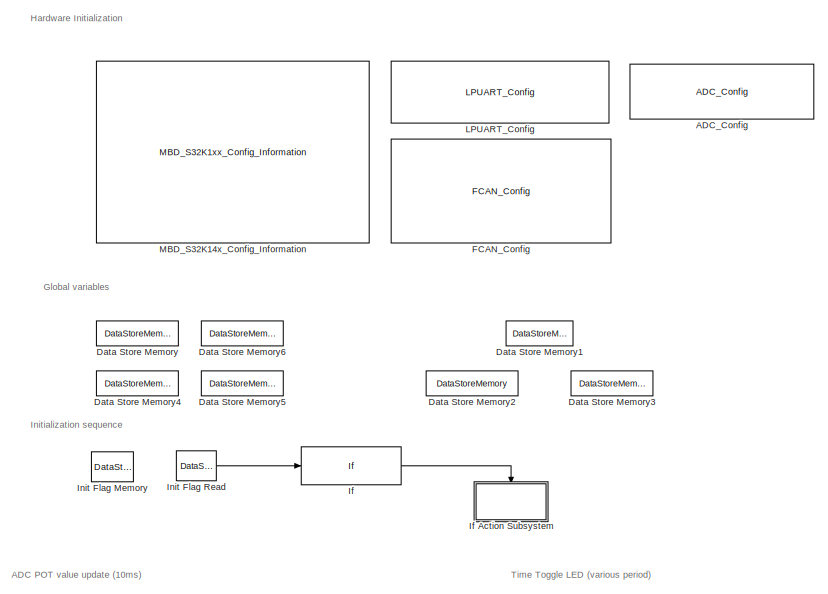
[diagram: root canvas - part 1/2, full width, top band]
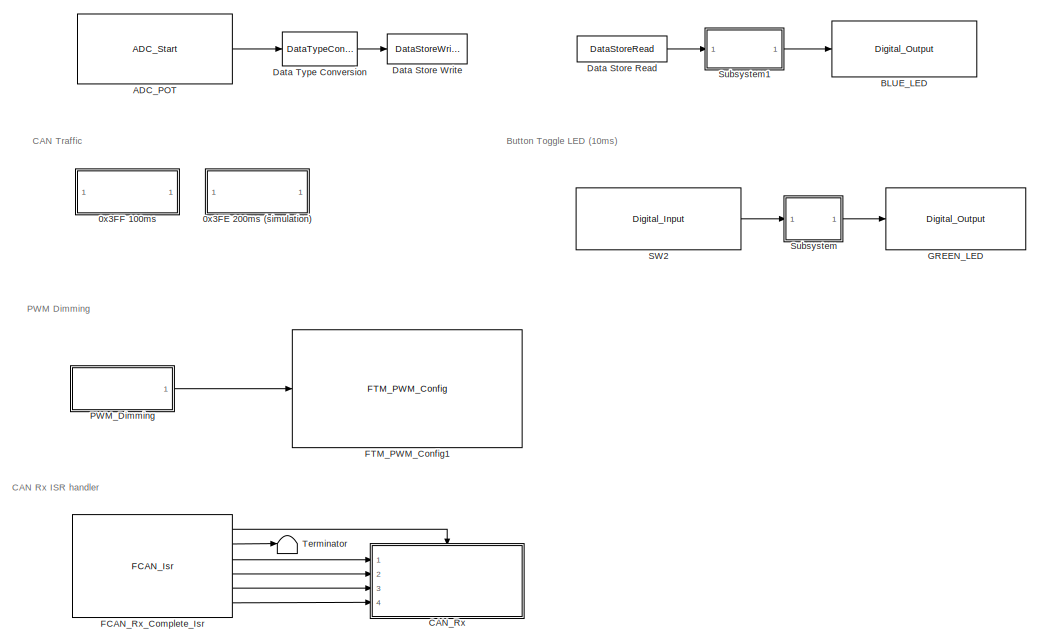
[diagram: root canvas - part 2/2, full width, bottom band]
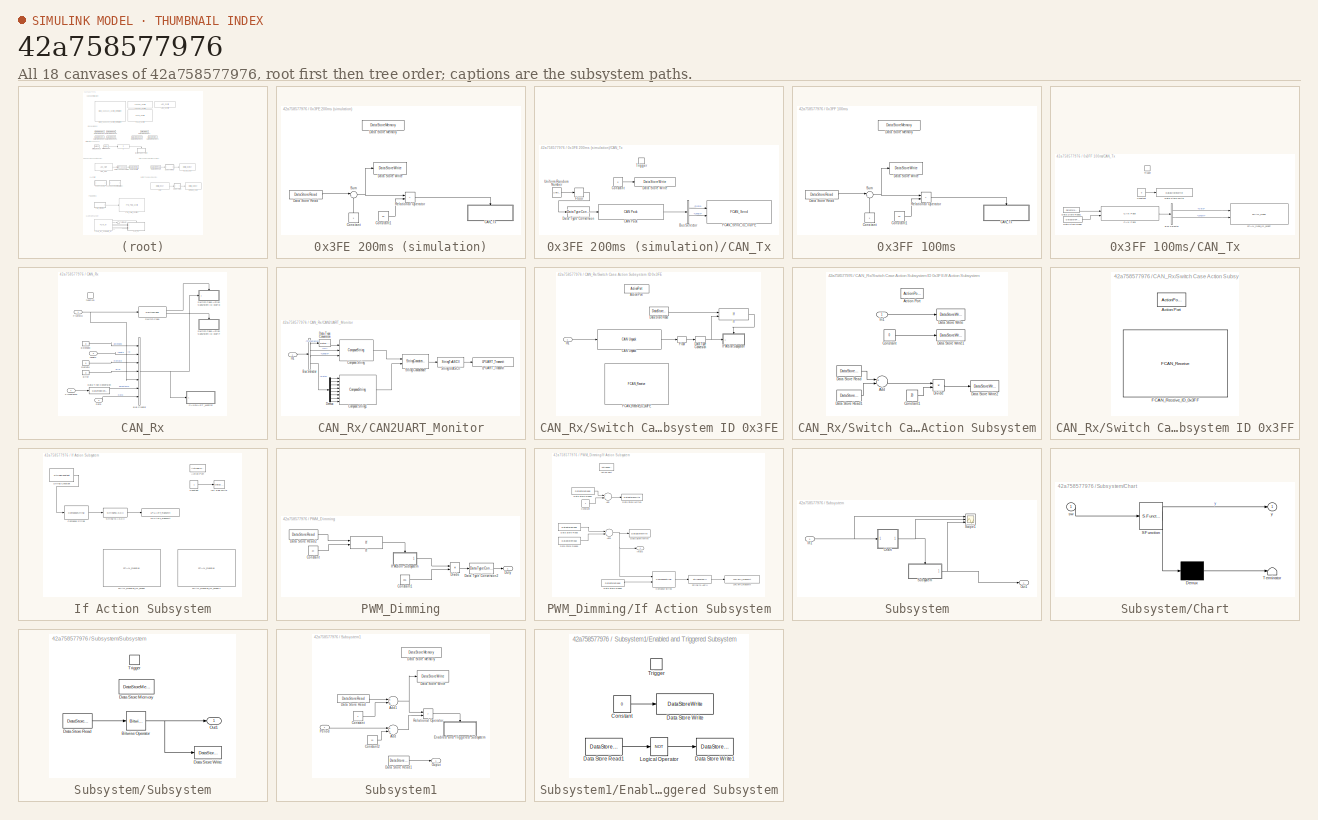
[diagram: thumbnail index - all 18 canvases of the model, root first then tree order]
MODEL slx_42a758577976
KIND model
CONFIG AbsTol = auto
CONFIG EnableMultiTasking = on
CONFIG FixedStep = 0.1
CONFIG InitFcn = mbd_s32k_consistency_checks(bdroot(gcs));
CONFIG MaxStep = auto
CONFIG MinStep = auto
CONFIG RelTol = 1e-3
CONFIG SampleTimeConstraint = Unconstrained
CONFIG Solver = FixedStepDiscrete
CONFIG SolverName = FixedStepDiscrete
CONFIG StartTime = 0.0
CONFIG StopTime = 10.0
BLOCK [SubSystem] 0x3FE 200ms (simulation)
  Ports = []
  RequestExecContextInheritance = off
BLOCK [SubSystem] 0x3FE 200ms (simulation)/CAN_Tx
  Ports = [0, 0, 0, 1]
  RTWSystemCode = Nonreusable function
  RequestExecContextInheritance = off
  TreatAsAtomicUnit = on
BLOCK [BusSelector] 0x3FE 200ms (simulation)/CAN_Tx/Bus Selector
  OutputAsBus = off
  OutputSignals = Data,Length
  Ports = [1, 2]
BLOCK [Reference] 0x3FE 200ms (simulation)/CAN_Tx/CAN Pack  REF=canmsglib/CAN Pack
  Ports = [1, 1]
  SourceBlock = canmsglib/CAN Pack
  SourceProductBaseCode = VN
  SourceProductName = Vehicle Network Toolbox
  SourceType = CAN Pack
BLOCK [Constant] 0x3FE 200ms (simulation)/CAN_Tx/Constant
  OutDataTypeStr = uint8
  Value = 0
BLOCK [DataStoreWrite] 0x3FE 200ms (simulation)/CAN_Tx/Data Store Write
  DataStoreName = counter_200ms
  Ports = [1]
BLOCK [DataTypeConversion] 0x3FE 200ms (simulation)/CAN_Tx/Data Type Conversion
  OutDataTypeStr = uint8
  RndMeth = Floor
  SaturateOnIntegerOverflow = off
BLOCK [Reference] 0x3FE 200ms (simulation)/CAN_Tx/FCAN_Send_ID_0x3FE  REF=mbd_s32k1xx_ec_toolbox/Communication Blocks/CAN Blocks/FCAN_Send
  Ports = [2]
  Priority = 2
  SourceBlock = mbd_s32k1xx_ec_toolbox/Communication Blocks/CAN Blocks/FCAN_Send
  SourceType = fcan_s32k_send
BLOCK [Rounding] 0x3FE 200ms (simulation)/CAN_Tx/Floor
  Operator = round
BLOCK [TriggerPort] 0x3FE 200ms (simulation)/CAN_Tx/Trigger
  PortDimensions = 1
  Ports = []
  StatesWhenEnabling = held
  VariantControl = Variant
BLOCK [UniformRandomNumber] 0x3FE 200ms (simulation)/CAN_Tx/Uniform Random Number
  Maximum = 255
  Minimum = 0
  Seed = 21
BLOCK [Constant] 0x3FE 200ms (simulation)/Constant
  OutDataTypeStr = uint8
BLOCK [Constant] 0x3FE 200ms (simulation)/Constant1
  Value = 20
BLOCK [DataStoreMemory] 0x3FE 200ms (simulation)/Data Store Memory
  DataStoreName = counter_200ms
  OutDataTypeStr = uint8
  ReadBeforeWriteMsg = warning
  ShowAdditionalParam = off
  WriteAfterReadMsg = warning
  WriteAfterWriteMsg = warning
BLOCK [DataStoreRead] 0x3FE 200ms (simulation)/Data Store Read
  DataStoreName = counter_200ms
  Ports = [0, 1]
BLOCK [DataStoreWrite] 0x3FE 200ms (simulation)/Data Store Write
  DataStoreName = counter_200ms
  Ports = [1]
BLOCK [RelationalOperator] 0x3FE 200ms (simulation)/Relational Operator
  InputSameDT = off
  Operator = >
  OutDataTypeStr = boolean
  Ports = [2, 1]
  RndMeth = Simplest
BLOCK [Sum] 0x3FE 200ms (simulation)/Sum
  AccumDataTypeStr = uint8
  IconShape = round
  InputSameDT = off
  Inputs = |++
  OutDataTypeStr = Inherit: Inherit via internal rule
  Ports = [2, 1]
  SaturateOnIntegerOverflow = off
BLOCK [SubSystem] 0x3FF 100ms
  Ports = []
  RequestExecContextInheritance = off
BLOCK [SubSystem] 0x3FF 100ms/CAN_Tx
  Ports = [0, 0, 0, 1]
  RTWSystemCode = Nonreusable function
  RequestExecContextInheritance = off
  TreatAsAtomicUnit = on
BLOCK [BusSelector] 0x3FF 100ms/CAN_Tx/Bus Selector
  OutputAsBus = off
  OutputSignals = Data,Length
  Ports = [1, 2]
BLOCK [Reference] 0x3FF 100ms/CAN_Tx/CAN Pack  REF=canmsglib/CAN Pack
  Ports = [2, 1]
  SourceBlock = canmsglib/CAN Pack
  SourceProductBaseCode = VN
  SourceProductName = Vehicle Network Toolbox
  SourceType = CAN Pack
BLOCK [Constant] 0x3FF 100ms/CAN_Tx/Constant
  OutDataTypeStr = uint8
  Value = 0
BLOCK [DataStoreRead] 0x3FF 100ms/CAN_Tx/Data Store Read
  DataStoreName = PotValue
  Ports = [0, 1]
BLOCK [DataStoreRead] 0x3FF 100ms/CAN_Tx/Data Store Read1
  DataStoreName = LEDSts
  Ports = [0, 1]
BLOCK [DataStoreWrite] 0x3FF 100ms/CAN_Tx/Data Store Write
  DataStoreName = counter_100ms
  Ports = [1]
BLOCK [Reference] 0x3FF 100ms/CAN_Tx/FCAN_Send_ID_0x3FF  REF=mbd_s32k1xx_ec_toolbox/Communication Blocks/CAN Blocks/FCAN_Send
  Ports = [2]
  Priority = 2
  SourceBlock = mbd_s32k1xx_ec_toolbox/Communication Blocks/CAN Blocks/FCAN_Send
  SourceType = fcan_s32k_send
BLOCK [TriggerPort] 0x3FF 100ms/CAN_Tx/Trigger
  PortDimensions = 1
  Ports = []
  StatesWhenEnabling = held
  VariantControl = Variant
BLOCK [Constant] 0x3FF 100ms/Constant
  OutDataTypeStr = uint8
BLOCK [Constant] 0x3FF 100ms/Constant1
  Value = 10
BLOCK [DataStoreMemory] 0x3FF 100ms/Data Store Memory
  DataStoreName = counter_100ms
  OutDataTypeStr = uint8
  ReadBeforeWriteMsg = warning
  ShowAdditionalParam = off
  WriteAfterReadMsg = warning
  WriteAfterWriteMsg = warning
BLOCK [DataStoreRead] 0x3FF 100ms/Data Store Read
  DataStoreName = counter_100ms
  Ports = [0, 1]
BLOCK [DataStoreWrite] 0x3FF 100ms/Data Store Write
  DataStoreName = counter_100ms
  Ports = [1]
BLOCK [RelationalOperator] 0x3FF 100ms/Relational Operator
  InputSameDT = off
  Operator = >
  OutDataTypeStr = boolean
  Ports = [2, 1]
  RndMeth = Simplest
BLOCK [Sum] 0x3FF 100ms/Sum
  AccumDataTypeStr = uint8
  IconShape = round
  InputSameDT = off
  Inputs = |++
  OutDataTypeStr = Inherit: Inherit via internal rule
  Ports = [2, 1]
  SaturateOnIntegerOverflow = off
BLOCK [Reference] ADC_Config  REF=mbd_s32k1xx_ec_toolbox/Motor Control Blocks/ADC Blocks/ADC_Config
  Ports = []
  Priority = 1
  SourceBlock = mbd_s32k1xx_ec_toolbox/Motor Control Blocks/ADC Blocks/ADC_Config
  SourceType = adc_s32k_config_block
BLOCK [Reference] ADC_POT  REF=mbd_s32k1xx_ec_toolbox/Motor Control Blocks/ADC Blocks/ADC_Start
  Ports = [0, 1]
  Priority = 2
  SourceBlock = mbd_s32k1xx_ec_toolbox/Motor Control Blocks/ADC Blocks/ADC_Start
  SourceType = adc_s32k_start_block
BLOCK [Reference] BLUE_LED  REF=mbd_s32k1xx_ec_toolbox/GPIO Blocks/Digital_Output
  Ports = [1]
  SourceBlock = mbd_s32k1xx_ec_toolbox/GPIO Blocks/Digital_Output
  SourceType = gpio_s32k_output
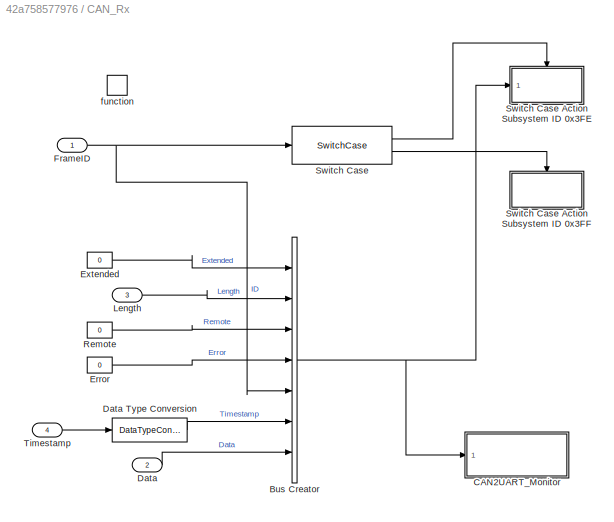
BLOCK [SubSystem] CAN_Rx
  Ports = [4, 0, 0, 1]
  RTWSystemCode = Nonreusable function
  RequestExecContextInheritance = off
  TreatAsAtomicUnit = on
BLOCK [BusCreator] CAN_Rx/Bus Creator
  DisplayOption = bar
  InheritFromInputs = on
  Inputs = 7
  NonVirtualBus = on
  OutDataTypeStr = Bus: CAN_MESSAGE_BUS
  Ports = [7, 1]
BLOCK [SubSystem] CAN_Rx/CAN2UART_Monitor
  Ports = [1]
  RequestExecContextInheritance = off
BLOCK [BusSelector] CAN_Rx/CAN2UART_Monitor/Bus Selector
  OutputAsBus = off
  OutputSignals = Timestamp,ID,Length,Data
  Ports = [1, 4]
BLOCK [ComposeString] CAN_Rx/CAN2UART_Monitor/Compose String
  Format = "%u\t0x%X\t%u\t"
  Ports = [3, 1]
BLOCK [ComposeString] CAN_Rx/CAN2UART_Monitor/Compose String1
  Format = "%.2X %.2X %.2X %.2X %.2X %.2X %.2X %.2X \r\n"
  Ports = [8, 1]
BLOCK [DataTypeConversion] CAN_Rx/CAN2UART_Monitor/Data Type Conversion
  OutDataTypeStr = uint16
  RndMeth = Floor
  SaturateOnIntegerOverflow = off
BLOCK [Demux] CAN_Rx/CAN2UART_Monitor/Demux
  DisplayOption = bar
  Outputs = 8
  Ports = [1, 8]
BLOCK [Inport] CAN_Rx/CAN2UART_Monitor/In1
  IconDisplay = Port number
  OutDataTypeStr = Bus: CAN_MESSAGE_BUS
BLOCK [Reference] CAN_Rx/CAN2UART_Monitor/LPUART_Transmit  REF=mbd_s32k1xx_ec_toolbox/Communication Blocks/UART Blocks/LPUART_Transmit
  Ports = [1]
  Priority = 2
  SourceBlock = mbd_s32k1xx_ec_toolbox/Communication Blocks/UART Blocks/LPUART_Transmit
  SourceType = lpuart_s32k_transmit
BLOCK [StringConcatenate] CAN_Rx/CAN2UART_Monitor/String Concatenate
  Ports = [2, 1]
BLOCK [StringToASCII] CAN_Rx/CAN2UART_Monitor/String to ASCII
  OutputVectorSize = 100
BLOCK [Inport] CAN_Rx/Data 
  IconDisplay = Port number
  Port = 2
BLOCK [DataTypeConversion] CAN_Rx/Data Type Conversion
  OutDataTypeStr = double
  RndMeth = Floor
  SaturateOnIntegerOverflow = off
BLOCK [Constant] CAN_Rx/Error
  OutDataTypeStr = uint8
  Value = 0
BLOCK [Constant] CAN_Rx/Extended
  OutDataTypeStr = uint8
  Value = 0
BLOCK [Inport] CAN_Rx/FrameID
  IconDisplay = Port number
BLOCK [Inport] CAN_Rx/Length
  IconDisplay = Port number
  Port = 3
BLOCK [Constant] CAN_Rx/Remote
  OutDataTypeStr = uint8
  Value = 0
BLOCK [SwitchCase] CAN_Rx/Switch Case
  CaseConditions = {hex2dec('3FE'), hex2dec('3FF')}
  Ports = [1, 2]
  ShowDefaultCase = off
BLOCK [SubSystem] CAN_Rx/Switch Case Action Subsystem ID 0x3FE
  Ports = [1, 0, 0, 0, 0, 0, 0, 1]
  RequestExecContextInheritance = off
  TreatAsAtomicUnit = on
BLOCK [ActionPort] CAN_Rx/Switch Case Action Subsystem ID 0x3FE/Action Port
  ActionPortLabel = case [ 1022 ]:
BLOCK [Reference] CAN_Rx/Switch Case Action Subsystem ID 0x3FE/CAN Unpack  REF=canmsglib/CAN Unpack
  Ports = [1, 1]
  SourceBlock = canmsglib/CAN Unpack
  SourceProductBaseCode = VN
  SourceProductName = Vehicle Network Toolbox
  SourceType = CAN Unpack
BLOCK [DataStoreRead] CAN_Rx/Switch Case Action Subsystem ID 0x3FE/Data Store Read
  DataStoreName = IntReq
  Ports = [0, 1]
BLOCK [DataTypeConversion] CAN_Rx/Switch Case Action Subsystem ID 0x3FE/Data Type Conversion
  OutDataTypeStr = uint8
  RndMeth = Floor
  SaturateOnIntegerOverflow = off
BLOCK [Reference] CAN_Rx/Switch Case Action Subsystem ID 0x3FE/FCAN_Receive_ID_0x3FE  REF=mbd_s32k1xx_ec_toolbox/Communication Blocks/CAN Blocks/FCAN_Receive
  Ports = []
  SourceBlock = mbd_s32k1xx_ec_toolbox/Communication Blocks/CAN Blocks/FCAN_Receive
  SourceType = fcan_s32k_receive
BLOCK [Rounding] CAN_Rx/Switch Case Action Subsystem ID 0x3FE/Floor
  Operator = round
BLOCK [If] CAN_Rx/Switch Case Action Subsystem ID 0x3FE/If
  IfExpression = u1 ~= u2
  NumInputs = 2
  Ports = [2, 1]
  ShowElse = off
BLOCK [SubSystem] CAN_Rx/Switch Case Action Subsystem ID 0x3FE/If Action Subsystem
  Ports = [1, 0, 0, 0, 0, 0, 0, 1]
  RequestExecContextInheritance = off
  TreatAsAtomicUnit = on
BLOCK [ActionPort] CAN_Rx/Switch Case Action Subsystem ID 0x3FE/If Action Subsystem/Action Port
  ActionPortLabel = if(u1 ~= u2)
BLOCK [Sum] CAN_Rx/Switch Case Action Subsystem ID 0x3FE/If Action Subsystem/Add
  InputSameDT = off
  Inputs = +-
  OutDataTypeStr = Inherit: Inherit via internal rule
  Ports = [2, 1]
  SaturateOnIntegerOverflow = off
BLOCK [Constant] CAN_Rx/Switch Case Action Subsystem ID 0x3FE/If Action Subsystem/Constant
  OutDataTypeStr = uint8
  Value = 0
BLOCK [Constant] CAN_Rx/Switch Case Action Subsystem ID 0x3FE/If Action Subsystem/Constant1
  Value = 20
BLOCK [DataStoreRead] CAN_Rx/Switch Case Action Subsystem ID 0x3FE/If Action Subsystem/Data Store Read
  DataStoreName = IntReq
  Ports = [0, 1]
BLOCK [DataStoreRead] CAN_Rx/Switch Case Action Subsystem ID 0x3FE/If Action Subsystem/Data Store Read1
  DataStoreName = IntSts
  Ports = [0, 1]
BLOCK [DataStoreWrite] CAN_Rx/Switch Case Action Subsystem ID 0x3FE/If Action Subsystem/Data Store Write
  DataStoreName = IntReq
  Ports = [1]
BLOCK [DataStoreWrite] CAN_Rx/Switch Case Action Subsystem ID 0x3FE/If Action Subsystem/Data Store Write1
  DataStoreName = IntStepCounter
  Ports = [1]
BLOCK [DataStoreWrite] CAN_Rx/Switch Case Action Subsystem ID 0x3FE/If Action Subsystem/Data Store Write2
  DataStoreName = IntStep
  Ports = [1]
BLOCK [Product] CAN_Rx/Switch Case Action Subsystem ID 0x3FE/If Action Subsystem/Divide
  InputSameDT = off
  Inputs = */
  OutDataTypeStr = Inherit: Inherit via internal rule
  Ports = [2, 1]
  RndMeth = Floor
  SaturateOnIntegerOverflow = off
BLOCK [Inport] CAN_Rx/Switch Case Action Subsystem ID 0x3FE/If Action Subsystem/In1
  IconDisplay = Port number
BLOCK [Inport] CAN_Rx/Switch Case Action Subsystem ID 0x3FE/In1
  IconDisplay = Port number
  OutDataTypeStr = Bus: CAN_MESSAGE_BUS
BLOCK [SubSystem] CAN_Rx/Switch Case Action Subsystem ID 0x3FF
  Ports = [0, 0, 0, 0, 0, 0, 0, 1]
  RequestExecContextInheritance = off
  TreatAsAtomicUnit = on
BLOCK [ActionPort] CAN_Rx/Switch Case Action Subsystem ID 0x3FF/Action Port
  ActionPortLabel = case [ 1023 ]:
BLOCK [Reference] CAN_Rx/Switch Case Action Subsystem ID 0x3FF/FCAN_Receive_ID_0x3FF  REF=mbd_s32k1xx_ec_toolbox/Communication Blocks/CAN Blocks/FCAN_Receive
  Ports = []
  SourceBlock = mbd_s32k1xx_ec_toolbox/Communication Blocks/CAN Blocks/FCAN_Receive
  SourceType = fcan_s32k_receive
BLOCK [Inport] CAN_Rx/Timestamp
  IconDisplay = Port number
  Port = 4
BLOCK [TriggerPort] CAN_Rx/function
  Ports = []
  StatesWhenEnabling = held
  TriggerType = function-call
  VariantControl = Variant
BLOCK [DataStoreMemory] Data Store Memory
  DataStoreName = IntReq
  OutDataTypeStr = uint8
  ReadBeforeWriteMsg = warning
  ShowAdditionalParam = off
  WriteAfterReadMsg = warning
  WriteAfterWriteMsg = warning
BLOCK [DataStoreMemory] Data Store Memory1
  DataStoreName = LEDReq
  OutDataTypeStr = boolean
  ReadBeforeWriteMsg = warning
  ShowAdditionalParam = off
  WriteAfterReadMsg = warning
  WriteAfterWriteMsg = warning
BLOCK [DataStoreMemory] Data Store Memory2
  DataStoreName = PotValue
  InitialValue = 0.1
  OutDataTypeStr = uint8
  OutMax = [2.65]
  OutMin = [0.1]
  ReadBeforeWriteMsg = warning
  ShowAdditionalParam = off
  WriteAfterReadMsg = warning
  WriteAfterWriteMsg = warning
BLOCK [DataStoreMemory] Data Store Memory3
  DataStoreName = LEDSts
  OutDataTypeStr = boolean
  ReadBeforeWriteMsg = warning
  ShowAdditionalParam = off
  WriteAfterReadMsg = warning
  WriteAfterWriteMsg = warning
BLOCK [DataStoreMemory] Data Store Memory4
  DataStoreName = IntStep
  OutDataTypeStr = double
  ReadBeforeWriteMsg = warning
  ShowAdditionalParam = off
  WriteAfterReadMsg = warning
  WriteAfterWriteMsg = warning
BLOCK [DataStoreMemory] Data Store Memory5
  DataStoreName = IntStepCounter
  OutDataTypeStr = uint8
  ReadBeforeWriteMsg = warning
  ShowAdditionalParam = off
  WriteAfterReadMsg = warning
  WriteAfterWriteMsg = warning
BLOCK [DataStoreMemory] Data Store Memory6
  DataStoreName = IntSts
  OutDataTypeStr = double
  ReadBeforeWriteMsg = warning
  ShowAdditionalParam = off
  WriteAfterReadMsg = warning
  WriteAfterWriteMsg = warning
BLOCK [DataStoreRead] Data Store Read
  DataStoreName = PotValue
  Ports = [0, 1]
BLOCK [DataStoreWrite] Data Store Write
  DataStoreName = PotValue
  Ports = [1]
BLOCK [DataTypeConversion] Data Type Conversion
  OutDataTypeStr = uint8
  RndMeth = Floor
  SaturateOnIntegerOverflow = off
BLOCK [Reference] FCAN_Config  REF=mbd_s32k1xx_ec_toolbox/Communication Blocks/CAN Blocks/FCAN_Config
  Ports = []
  Priority = 1
  SourceBlock = mbd_s32k1xx_ec_toolbox/Communication Blocks/CAN Blocks/FCAN_Config
  SourceType = fcan_s32k_config
BLOCK [Reference] FCAN_Rx_Complete_Isr  REF=mbd_s32k1xx_ec_toolbox/Communication Blocks/CAN Blocks/FCAN_Isr
  Ports = [0, 6]
  SourceBlock = mbd_s32k1xx_ec_toolbox/Communication Blocks/CAN Blocks/FCAN_Isr
  SourceType = fcan_s32k_isr
BLOCK [Reference] FTM_PWM_Config1  REF=mbd_s32k1xx_ec_toolbox/Motor Control Blocks/FTM Blocks/FTM_PWM_Config
  Ports = [1]
  Priority = 1
  SourceBlock = mbd_s32k1xx_ec_toolbox/Motor Control Blocks/FTM Blocks/FTM_PWM_Config
  SourceType = FTM_s32k_pwm_config_block
BLOCK [Reference] GREEN_LED  REF=mbd_s32k1xx_ec_toolbox/GPIO Blocks/Digital_Output
  Ports = [1]
  SourceBlock = mbd_s32k1xx_ec_toolbox/GPIO Blocks/Digital_Output
  SourceType = gpio_s32k_output
BLOCK [If] If
  IfExpression = u1 == 0
  Ports = [1, 1]
  ShowElse = off
BLOCK [SubSystem] If Action Subsystem
  Ports = [0, 0, 0, 0, 0, 0, 0, 1]
  RequestExecContextInheritance = off
  TreatAsAtomicUnit = on
BLOCK [ActionPort] If Action Subsystem/Action Port
  ActionPortLabel = if(u1 == 0)
BLOCK [ComposeString] If Action Subsystem/Compose String
  Format = "%s\n\r"
  Ports = [1, 1]
BLOCK [Constant] If Action Subsystem/Constant
  OutDataTypeStr = uint32
BLOCK [Reference] If Action Subsystem/FCAN_Receive_ID_0x3FE  REF=mbd_s32k1xx_ec_toolbox/Communication Blocks/CAN Blocks/FCAN_Receive
  Ports = []
  SourceBlock = mbd_s32k1xx_ec_toolbox/Communication Blocks/CAN Blocks/FCAN_Receive
  SourceType = fcan_s32k_receive
BLOCK [Reference] If Action Subsystem/FCAN_Receive_ID_0x3FE1  REF=mbd_s32k1xx_ec_toolbox/Communication Blocks/CAN Blocks/FCAN_Receive
  Ports = []
  SourceBlock = mbd_s32k1xx_ec_toolbox/Communication Blocks/CAN Blocks/FCAN_Receive
  SourceType = fcan_s32k_receive
BLOCK [DataStoreWrite] If Action Subsystem/Init Flag Write
  DataStoreName = init_flag
  Ports = [1]
BLOCK [Reference] If Action Subsystem/LPUART_Transmit  REF=mbd_s32k1xx_ec_toolbox/Communication Blocks/UART Blocks/LPUART_Transmit
  Ports = [1]
  Priority = 2
  SourceBlock = mbd_s32k1xx_ec_toolbox/Communication Blocks/UART Blocks/LPUART_Transmit
  SourceType = lpuart_s32k_transmit
BLOCK [StringConstant] If Action Subsystem/String Constant
  String = "Start"
BLOCK [StringToASCII] If Action Subsystem/String to ASCII
  OutputVectorSize = 100
BLOCK [DataStoreMemory] Init Flag Memory
  DataStoreName = init_flag
  OutDataTypeStr = uint32
  ReadBeforeWriteMsg = warning
  ShowAdditionalParam = off
  WriteAfterReadMsg = warning
  WriteAfterWriteMsg = warning
BLOCK [DataStoreRead] Init Flag Read
  DataStoreName = init_flag
  Ports = [0, 1]
BLOCK [Reference] LPUART_Config  REF=mbd_s32k1xx_ec_toolbox/Communication Blocks/UART Blocks/LPUART_Config
  Ports = []
  Priority = 1
  SourceBlock = mbd_s32k1xx_ec_toolbox/Communication Blocks/UART Blocks/LPUART_Config
  SourceType = lpuart_s32k_config
BLOCK [Reference] MBD_S32K14x_Config_Information  REF=mbd_s32k1xx_ec_toolbox/MBD_S32K1xx_Config_Information
  Ports = []
  SourceBlock = mbd_s32k1xx_ec_toolbox/MBD_S32K1xx_Config_Information
  SourceType = MBDTBX_EC_S32K
BLOCK [SubSystem] PWM_Dimming
  Ports = [0, 1]
  RequestExecContextInheritance = off
BLOCK [Constant] PWM_Dimming/Constant
  OutDataTypeStr = uint8
  Value = 20
BLOCK [Constant] PWM_Dimming/Constant1
  Value = 255
BLOCK [DataStoreRead] PWM_Dimming/Data Store Read2
  DataStoreName = IntStepCounter
  Ports = [0, 1]
BLOCK [DataTypeConversion] PWM_Dimming/Data Type Conversion2
  OutDataTypeStr = single
  RndMeth = Floor
  SaturateOnIntegerOverflow = off
BLOCK [Product] PWM_Dimming/Divide
  InputSameDT = off
  Inputs = */
  OutDataTypeStr = Inherit: Inherit via internal rule
  Ports = [2, 1]
  RndMeth = Floor
  SaturateOnIntegerOverflow = off
BLOCK [Outport] PWM_Dimming/Duty
  IconDisplay = Port number
BLOCK [If] PWM_Dimming/If
  IfExpression = u1 < u2
  NumInputs = 2
  Ports = [2, 1]
  ShowElse = off
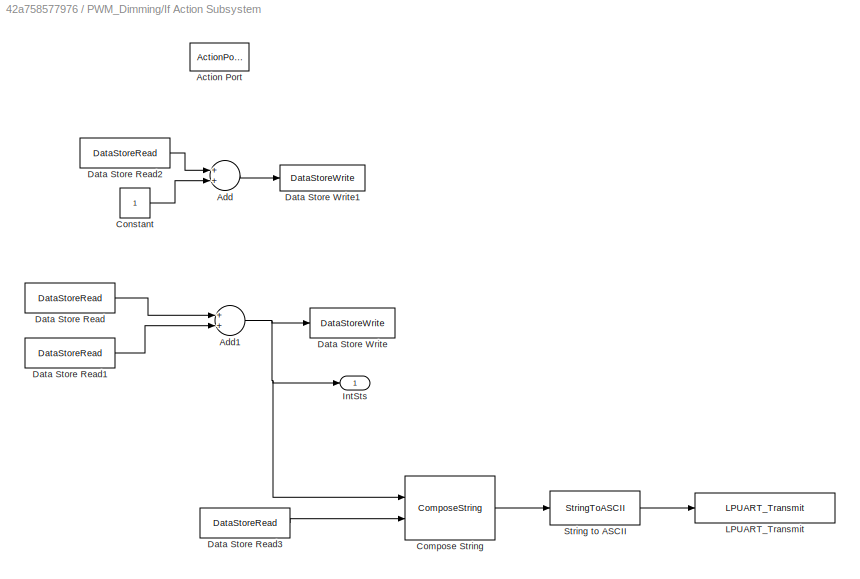
BLOCK [SubSystem] PWM_Dimming/If Action Subsystem
  Ports = [0, 1, 0, 0, 0, 0, 0, 1]
  RequestExecContextInheritance = off
  TreatAsAtomicUnit = on
BLOCK [ActionPort] PWM_Dimming/If Action Subsystem/Action Port
  ActionPortLabel = if(u1 < u2)
BLOCK [Sum] PWM_Dimming/If Action Subsystem/Add
  InputSameDT = off
  OutDataTypeStr = Inherit: Inherit via internal rule
  Ports = [2, 1]
  SaturateOnIntegerOverflow = off
BLOCK [Sum] PWM_Dimming/If Action Subsystem/Add1
  InputSameDT = off
  OutDataTypeStr = Inherit: Inherit via internal rule
  Ports = [2, 1]
  SaturateOnIntegerOverflow = off
BLOCK [ComposeString] PWM_Dimming/If Action Subsystem/Compose String
  Format = "IntSts:%3.3f\tIntReq:%u\n\r"
  Ports = [2, 1]
BLOCK [Constant] PWM_Dimming/If Action Subsystem/Constant
  OutDataTypeStr = uint8
BLOCK [DataStoreRead] PWM_Dimming/If Action Subsystem/Data Store Read
  DataStoreName = IntSts
  Ports = [0, 1]
BLOCK [DataStoreRead] PWM_Dimming/If Action Subsystem/Data Store Read1
  DataStoreName = IntStep
  Ports = [0, 1]
BLOCK [DataStoreRead] PWM_Dimming/If Action Subsystem/Data Store Read2
  DataStoreName = IntStepCounter
  Ports = [0, 1]
BLOCK [DataStoreRead] PWM_Dimming/If Action Subsystem/Data Store Read3
  DataStoreName = IntReq
  Ports = [0, 1]
BLOCK [DataStoreWrite] PWM_Dimming/If Action Subsystem/Data Store Write
  DataStoreName = IntSts
  Ports = [1]
BLOCK [DataStoreWrite] PWM_Dimming/If Action Subsystem/Data Store Write1
  DataStoreName = IntStepCounter
  Ports = [1]
BLOCK [Outport] PWM_Dimming/If Action Subsystem/IntSts
  IconDisplay = Port number
BLOCK [Reference] PWM_Dimming/If Action Subsystem/LPUART_Transmit  REF=mbd_s32k1xx_ec_toolbox/Communication Blocks/UART Blocks/LPUART_Transmit
  Ports = [1]
  Priority = 2
  SourceBlock = mbd_s32k1xx_ec_toolbox/Communication Blocks/UART Blocks/LPUART_Transmit
  SourceType = lpuart_s32k_transmit
BLOCK [StringToASCII] PWM_Dimming/If Action Subsystem/String to ASCII
  OutputVectorSize = 100
BLOCK [Reference] SW2  REF=mbd_s32k1xx_ec_toolbox/GPIO Blocks/Digital_Input
  Ports = [0, 1]
  SourceBlock = mbd_s32k1xx_ec_toolbox/GPIO Blocks/Digital_Input
  SourceType = gpio_s32k_input
BLOCK [SubSystem] Subsystem
  Ports = [1, 1]
  RequestExecContextInheritance = off
BLOCK [SubSystem] Subsystem/Chart
  BlockKeywords = __PRM__SERIALIZED__DATA__:Stateflow Chart,Stateflow Diagram
  ErrorFcn = Stateflow.Translate.translate
  PermitHierarchicalResolution = ExplicitOnly
  Ports = [1, 1]
  RequestExecContextInheritance = off
  SFBlockType = Chart
  TreatAsAtomicUnit = on
BLOCK [Demux] Subsystem/Chart/ Demux 
  Outputs = 1
  Ports = [1, 1]
BLOCK [S-Function] Subsystem/Chart/ SFunction 
  EnableBusSupport = on
  FunctionName = sf_sfun
  PortCounts = [1 2]
  Ports = [1, 2]
  SFcnIsStateOwnerBlock = off
  SFunctionDeploymentMode = off
  Tag = Stateflow S-Function Sample_Project_s32k144 3
BLOCK [Terminator] Subsystem/Chart/ Terminator 
BLOCK [Inport] Subsystem/Chart/sw
  IconDisplay = Port number
BLOCK [Outport] Subsystem/Chart/y
  IconDisplay = Port number
BLOCK [Inport] Subsystem/In1
  IconDisplay = Port number
BLOCK [Outport] Subsystem/Out1
  IconDisplay = Port number
BLOCK [Scope] Subsystem/Scope1
  Floating = off
  NumInputPorts = 3
  Ports = [3]
  ScopeSpecificationString = Simulink.scopes.TimeScopeBlockCfg('CurrentConfiguration', extmgr.ConfigurationSet(extmgr.Configuration('Core','General UI',true),extmgr.Configuration('Core','Source UI',true),extmgr.Configuration('Sources','WiredSimulink',true,'DataLoggingVariableName','ScopeData1'),extmgr.Configuration('Visuals','Time Domain',true,'SerializedDisplays',{struct('MinYLimReal','-1.00000','MaxYLimReal','1.00000','YLab...<+2673ch>
BLOCK [SubSystem] Subsystem/Subsystem
  Ports = [0, 1, 0, 1]
  RequestExecContextInheritance = off
BLOCK [Reference] Subsystem/Subsystem/Bitwise Operator  REF=simulink/Logic and Bit
Operations/Bitwise
Operator
  Ports = [1, 1]
  SourceBlock = simulink/Logic and Bit\nOperations/Bitwise\nOperator
  SourceProductBaseCode = SL
  SourceProductName = Simulink
  SourceType = Bitwise Operator
BLOCK [DataStoreMemory] Subsystem/Subsystem/Data Store Memory
  DataStoreName = LedSts
  OutDataTypeStr = boolean
  ReadBeforeWriteMsg = warning
  ShowAdditionalParam = off
  WriteAfterReadMsg = warning
  WriteAfterWriteMsg = warning
BLOCK [DataStoreRead] Subsystem/Subsystem/Data Store Read
  DataStoreName = LedSts
  Ports = [0, 1]
BLOCK [DataStoreWrite] Subsystem/Subsystem/Data Store Write
  DataStoreName = LedSts
  Ports = [1]
BLOCK [Outport] Subsystem/Subsystem/Out1
  IconDisplay = Port number
BLOCK [TriggerPort] Subsystem/Subsystem/Trigger
  PortDimensions = 1
  Ports = []
  StatesWhenEnabling = held
  VariantControl = Variant
BLOCK [SubSystem] Subsystem1
  Ports = [1, 1]
  RequestExecContextInheritance = off
BLOCK [Sum] Subsystem1/Add
  InputSameDT = off
  OutDataTypeStr = Inherit: Inherit via internal rule
  Ports = [2, 1]
  SaturateOnIntegerOverflow = off
BLOCK [Sum] Subsystem1/Add1
  InputSameDT = off
  OutDataTypeStr = Inherit: Inherit via internal rule
  Ports = [2, 1]
  SaturateOnIntegerOverflow = off
BLOCK [Constant] Subsystem1/Constant
  OutDataTypeStr = uint8
BLOCK [Constant] Subsystem1/Constant2
  Value = 10
BLOCK [DataStoreMemory] Subsystem1/Data Store Memory
  DataStoreName = counter_period
  OutDataTypeStr = uint32
  ReadBeforeWriteMsg = warning
  ShowAdditionalParam = off
  WriteAfterReadMsg = warning
  WriteAfterWriteMsg = warning
BLOCK [DataStoreRead] Subsystem1/Data Store Read
  DataStoreName = counter_period
  Ports = [0, 1]
BLOCK [DataStoreRead] Subsystem1/Data Store Read1
  DataStoreName = LEDSts
  Ports = [0, 1]
BLOCK [DataStoreWrite] Subsystem1/Data Store Write
  DataStoreName = counter_period
  Ports = [1]
BLOCK [SubSystem] Subsystem1/Enabled and Triggered Subsystem
  Ports = [0, 0, 0, 1]
  RequestExecContextInheritance = off
  TreatAsAtomicUnit = on
BLOCK [Constant] Subsystem1/Enabled and Triggered Subsystem/Constant
  OutDataTypeStr = Inherit: Inherit via back propagation
  Value = 0
BLOCK [DataStoreRead] Subsystem1/Enabled and Triggered Subsystem/Data Store Read1
  DataStoreName = LEDSts
  Ports = [0, 1]
BLOCK [DataStoreWrite] Subsystem1/Enabled and Triggered Subsystem/Data Store Write
  DataStoreName = counter_period
  Ports = [1]
BLOCK [DataStoreWrite] Subsystem1/Enabled and Triggered Subsystem/Data Store Write1
  DataStoreName = LEDSts
  Ports = [1]
BLOCK [Logic] Subsystem1/Enabled and Triggered Subsystem/Logical Operator
  AllPortsSameDT = off
  Operator = NOT
  OutDataTypeStr = boolean
  Ports = [1, 1]
BLOCK [TriggerPort] Subsystem1/Enabled and Triggered Subsystem/Trigger
  Ports = []
  StatesWhenEnabling = held
  VariantControl = Variant
BLOCK [Outport] Subsystem1/Ouput
  IconDisplay = Port number
BLOCK [Inport] Subsystem1/Period
  IconDisplay = Port number
BLOCK [RelationalOperator] Subsystem1/Relational Operator
  InputSameDT = off
  Operator = >
  OutDataTypeStr = boolean
  Ports = [2, 1]
  RndMeth = Simplest
BLOCK [Terminator] Terminator
ANNOTATION (root): ADC POT value update (10ms)
ANNOTATION (root): Button Toggle LED (10ms)
ANNOTATION (root): CAN Rx ISR handler
ANNOTATION (root): CAN Traffic
ANNOTATION (root): Global variables
ANNOTATION (root): Hardware Initialization
ANNOTATION (root): Initialization sequence
ANNOTATION (root): PWM Dimming
ANNOTATION (root): Time Toggle LED (various period)
LINE 0x3FE 200ms (simulation)/CAN_Tx/Bus Selector:1 -> 0x3FE 200ms (simulation)/CAN_Tx/FCAN_Send_ID_0x3FE:1
LINE 0x3FE 200ms (simulation)/CAN_Tx/Bus Selector:2 -> 0x3FE 200ms (simulation)/CAN_Tx/FCAN_Send_ID_0x3FE:2
LINE 0x3FE 200ms (simulation)/CAN_Tx/CAN Pack:1 -> 0x3FE 200ms (simulation)/CAN_Tx/Bus Selector:1
LINE 0x3FE 200ms (simulation)/CAN_Tx/Constant:1 -> 0x3FE 200ms (simulation)/CAN_Tx/Data Store Write:1
LINE 0x3FE 200ms (simulation)/CAN_Tx/Data Type Conversion:1 -> 0x3FE 200ms (simulation)/CAN_Tx/CAN Pack:1
LINE 0x3FE 200ms (simulation)/CAN_Tx/Floor:1 -> 0x3FE 200ms (simulation)/CAN_Tx/Data Type Conversion:1
LINE 0x3FE 200ms (simulation)/CAN_Tx/Uniform Random Number:1 -> 0x3FE 200ms (simulation)/CAN_Tx/Floor:1
LINE 0x3FE 200ms (simulation)/Constant1:1 -> 0x3FE 200ms (simulation)/Relational Operator:2
LINE 0x3FE 200ms (simulation)/Constant:1 -> 0x3FE 200ms (simulation)/Sum:2
LINE 0x3FE 200ms (simulation)/Data Store Read:1 -> 0x3FE 200ms (simulation)/Sum:1
LINE 0x3FE 200ms (simulation)/Relational Operator:1 -> 0x3FE 200ms (simulation)/CAN_Tx:trigger
NET 0x3FE 200ms (simulation)/Sum:1 -> 0x3FE 200ms (simulation)/Data Store Write:1, 0x3FE 200ms (simulation)/Relational Operator:1
LINE 0x3FF 100ms/CAN_Tx/Bus Selector:1 -> 0x3FF 100ms/CAN_Tx/FCAN_Send_ID_0x3FF:1
LINE 0x3FF 100ms/CAN_Tx/Bus Selector:2 -> 0x3FF 100ms/CAN_Tx/FCAN_Send_ID_0x3FF:2
LINE 0x3FF 100ms/CAN_Tx/CAN Pack:1 -> 0x3FF 100ms/CAN_Tx/Bus Selector:1
LINE 0x3FF 100ms/CAN_Tx/Constant:1 -> 0x3FF 100ms/CAN_Tx/Data Store Write:1
LINE 0x3FF 100ms/CAN_Tx/Data Store Read1:1 -> 0x3FF 100ms/CAN_Tx/CAN Pack:1
LINE 0x3FF 100ms/CAN_Tx/Data Store Read:1 -> 0x3FF 100ms/CAN_Tx/CAN Pack:2
LINE 0x3FF 100ms/Constant1:1 -> 0x3FF 100ms/Relational Operator:2
LINE 0x3FF 100ms/Constant:1 -> 0x3FF 100ms/Sum:2
LINE 0x3FF 100ms/Data Store Read:1 -> 0x3FF 100ms/Sum:1
LINE 0x3FF 100ms/Relational Operator:1 -> 0x3FF 100ms/CAN_Tx:trigger
NET 0x3FF 100ms/Sum:1 -> 0x3FF 100ms/Data Store Write:1, 0x3FF 100ms/Relational Operator:1
LINE ADC_POT:1 -> Data Type Conversion:1
NET CAN_Rx/Bus Creator:1 -> CAN_Rx/CAN2UART_Monitor:1, CAN_Rx/Switch Case Action Subsystem ID 0x3FE:1
LINE CAN_Rx/CAN2UART_Monitor/Bus Selector:1 -> CAN_Rx/CAN2UART_Monitor/Data Type Conversion:1
LINE CAN_Rx/CAN2UART_Monitor/Bus Selector:2 -> CAN_Rx/CAN2UART_Monitor/Compose String:2
LINE CAN_Rx/CAN2UART_Monitor/Bus Selector:3 -> CAN_Rx/CAN2UART_Monitor/Compose String:3
LINE CAN_Rx/CAN2UART_Monitor/Bus Selector:4 -> CAN_Rx/CAN2UART_Monitor/Demux:1
LINE CAN_Rx/CAN2UART_Monitor/Compose String1:1 -> CAN_Rx/CAN2UART_Monitor/String Concatenate:2
LINE CAN_Rx/CAN2UART_Monitor/Compose String:1 -> CAN_Rx/CAN2UART_Monitor/String Concatenate:1
LINE CAN_Rx/CAN2UART_Monitor/Data Type Conversion:1 -> CAN_Rx/CAN2UART_Monitor/Compose String:1
LINE CAN_Rx/CAN2UART_Monitor/Demux:1 -> CAN_Rx/CAN2UART_Monitor/Compose String1:1
LINE CAN_Rx/CAN2UART_Monitor/Demux:2 -> CAN_Rx/CAN2UART_Monitor/Compose String1:2
LINE CAN_Rx/CAN2UART_Monitor/Demux:3 -> CAN_Rx/CAN2UART_Monitor/Compose String1:3
LINE CAN_Rx/CAN2UART_Monitor/Demux:4 -> CAN_Rx/CAN2UART_Monitor/Compose String1:4
LINE CAN_Rx/CAN2UART_Monitor/Demux:5 -> CAN_Rx/CAN2UART_Monitor/Compose String1:5
LINE CAN_Rx/CAN2UART_Monitor/Demux:6 -> CAN_Rx/CAN2UART_Monitor/Compose String1:6
LINE CAN_Rx/CAN2UART_Monitor/Demux:7 -> CAN_Rx/CAN2UART_Monitor/Compose String1:7
LINE CAN_Rx/CAN2UART_Monitor/Demux:8 -> CAN_Rx/CAN2UART_Monitor/Compose String1:8
LINE CAN_Rx/CAN2UART_Monitor/In1:1 -> CAN_Rx/CAN2UART_Monitor/Bus Selector:1
LINE CAN_Rx/CAN2UART_Monitor/String Concatenate:1 -> CAN_Rx/CAN2UART_Monitor/String to ASCII:1
LINE CAN_Rx/CAN2UART_Monitor/String to ASCII:1 -> CAN_Rx/CAN2UART_Monitor/LPUART_Transmit:1
LINE CAN_Rx/Data :1 -> CAN_Rx/Bus Creator:7
LINE CAN_Rx/Data Type Conversion:1 -> CAN_Rx/Bus Creator:6
LINE CAN_Rx/Error:1 -> CAN_Rx/Bus Creator:4
LINE CAN_Rx/Extended:1 -> CAN_Rx/Bus Creator:1
NET CAN_Rx/FrameID:1 -> CAN_Rx/Bus Creator:5, CAN_Rx/Switch Case:1
LINE CAN_Rx/Length:1 -> CAN_Rx/Bus Creator:2
LINE CAN_Rx/Remote:1 -> CAN_Rx/Bus Creator:3
LINE CAN_Rx/Switch Case Action Subsystem ID 0x3FE/CAN Unpack:1 -> CAN_Rx/Switch Case Action Subsystem ID 0x3FE/Floor:1
LINE CAN_Rx/Switch Case Action Subsystem ID 0x3FE/Data Store Read:1 -> CAN_Rx/Switch Case Action Subsystem ID 0x3FE/If:1
NET CAN_Rx/Switch Case Action Subsystem ID 0x3FE/Data Type Conversion:1 -> CAN_Rx/Switch Case Action Subsystem ID 0x3FE/If Action Subsystem:1, CAN_Rx/Switch Case Action Subsystem ID 0x3FE/If:2
LINE CAN_Rx/Switch Case Action Subsystem ID 0x3FE/Floor:1 -> CAN_Rx/Switch Case Action Subsystem ID 0x3FE/Data Type Conversion:1
LINE CAN_Rx/Switch Case Action Subsystem ID 0x3FE/If Action Subsystem/Add:1 -> CAN_Rx/Switch Case Action Subsystem ID 0x3FE/If Action Subsystem/Divide:1
LINE CAN_Rx/Switch Case Action Subsystem ID 0x3FE/If Action Subsystem/Constant1:1 -> CAN_Rx/Switch Case Action Subsystem ID 0x3FE/If Action Subsystem/Divide:2
LINE CAN_Rx/Switch Case Action Subsystem ID 0x3FE/If Action Subsystem/Constant:1 -> CAN_Rx/Switch Case Action Subsystem ID 0x3FE/If Action Subsystem/Data Store Write1:1
LINE CAN_Rx/Switch Case Action Subsystem ID 0x3FE/If Action Subsystem/Data Store Read1:1 -> CAN_Rx/Switch Case Action Subsystem ID 0x3FE/If Action Subsystem/Add:2
LINE CAN_Rx/Switch Case Action Subsystem ID 0x3FE/If Action Subsystem/Data Store Read:1 -> CAN_Rx/Switch Case Action Subsystem ID 0x3FE/If Action Subsystem/Add:1
LINE CAN_Rx/Switch Case Action Subsystem ID 0x3FE/If Action Subsystem/Divide:1 -> CAN_Rx/Switch Case Action Subsystem ID 0x3FE/If Action Subsystem/Data Store Write2:1
LINE CAN_Rx/Switch Case Action Subsystem ID 0x3FE/If Action Subsystem/In1:1 -> CAN_Rx/Switch Case Action Subsystem ID 0x3FE/If Action Subsystem/Data Store Write:1
LINE CAN_Rx/Switch Case Action Subsystem ID 0x3FE/If:1 -> CAN_Rx/Switch Case Action Subsystem ID 0x3FE/If Action Subsystem:ifaction
LINE CAN_Rx/Switch Case Action Subsystem ID 0x3FE/In1:1 -> CAN_Rx/Switch Case Action Subsystem ID 0x3FE/CAN Unpack:1
LINE CAN_Rx/Switch Case:1 -> CAN_Rx/Switch Case Action Subsystem ID 0x3FE:ifaction
LINE CAN_Rx/Switch Case:2 -> CAN_Rx/Switch Case Action Subsystem ID 0x3FF:ifaction
LINE CAN_Rx/Timestamp:1 -> CAN_Rx/Data Type Conversion:1
LINE Data Store Read:1 -> Subsystem1:1
LINE Data Type Conversion:1 -> Data Store Write:1
LINE FCAN_Rx_Complete_Isr:1 -> CAN_Rx:trigger
LINE FCAN_Rx_Complete_Isr:2 -> Terminator:1
LINE FCAN_Rx_Complete_Isr:3 -> CAN_Rx:1
LINE FCAN_Rx_Complete_Isr:4 -> CAN_Rx:2
LINE FCAN_Rx_Complete_Isr:5 -> CAN_Rx:3
LINE FCAN_Rx_Complete_Isr:6 -> CAN_Rx:4
LINE If Action Subsystem/Compose String:1 -> If Action Subsystem/String to ASCII:1
LINE If Action Subsystem/Constant:1 -> If Action Subsystem/Init Flag Write:1
LINE If Action Subsystem/String Constant:1 -> If Action Subsystem/Compose String:1
LINE If Action Subsystem/String to ASCII:1 -> If Action Subsystem/LPUART_Transmit:1
LINE If:1 -> If Action Subsystem:ifaction
LINE Init Flag Read:1 -> If:1
LINE PWM_Dimming/Constant1:1 -> PWM_Dimming/Divide:2
LINE PWM_Dimming/Constant:1 -> PWM_Dimming/If:2
LINE PWM_Dimming/Data Store Read2:1 -> PWM_Dimming/If:1
LINE PWM_Dimming/Data Type Conversion2:1 -> PWM_Dimming/Duty:1
LINE PWM_Dimming/Divide:1 -> PWM_Dimming/Data Type Conversion2:1
NET PWM_Dimming/If Action Subsystem/Add1:1 -> PWM_Dimming/If Action Subsystem/Compose String:1, PWM_Dimming/If Action Subsystem/Data Store Write:1, PWM_Dimming/If Action Subsystem/IntSts:1
LINE PWM_Dimming/If Action Subsystem/Add:1 -> PWM_Dimming/If Action Subsystem/Data Store Write1:1
LINE PWM_Dimming/If Action Subsystem/Compose String:1 -> PWM_Dimming/If Action Subsystem/String to ASCII:1
LINE PWM_Dimming/If Action Subsystem/Constant:1 -> PWM_Dimming/If Action Subsystem/Add:2
LINE PWM_Dimming/If Action Subsystem/Data Store Read1:1 -> PWM_Dimming/If Action Subsystem/Add1:2
LINE PWM_Dimming/If Action Subsystem/Data Store Read2:1 -> PWM_Dimming/If Action Subsystem/Add:1
LINE PWM_Dimming/If Action Subsystem/Data Store Read3:1 -> PWM_Dimming/If Action Subsystem/Compose String:2
LINE PWM_Dimming/If Action Subsystem/Data Store Read:1 -> PWM_Dimming/If Action Subsystem/Add1:1
LINE PWM_Dimming/If Action Subsystem/String to ASCII:1 -> PWM_Dimming/If Action Subsystem/LPUART_Transmit:1
LINE PWM_Dimming/If Action Subsystem:1 -> PWM_Dimming/Divide:1
LINE PWM_Dimming/If:1 -> PWM_Dimming/If Action Subsystem:ifaction
LINE PWM_Dimming:1 -> FTM_PWM_Config1:1
LINE SW2:1 -> Subsystem:1
NET Subsystem/Chart:1 -> Subsystem/Scope1:2, Subsystem/Subsystem:trigger
NET Subsystem/In1:1 -> Subsystem/Chart:1, Subsystem/Scope1:1
NET Subsystem/Subsystem/Bitwise Operator:1 -> Subsystem/Subsystem/Data Store Write:1, Subsystem/Subsystem/Out1:1
LINE Subsystem/Subsystem/Data Store Read:1 -> Subsystem/Subsystem/Bitwise Operator:1
NET Subsystem/Subsystem:1 -> Subsystem/Out1:1, Subsystem/Scope1:3
NET Subsystem1/Add1:1 -> Subsystem1/Data Store Write:1, Subsystem1/Relational Operator:1
LINE Subsystem1/Add:1 -> Subsystem1/Relational Operator:2
LINE Subsystem1/Constant2:1 -> Subsystem1/Add:2
LINE Subsystem1/Constant:1 -> Subsystem1/Add1:2
LINE Subsystem1/Data Store Read1:1 -> Subsystem1/Ouput:1
LINE Subsystem1/Data Store Read:1 -> Subsystem1/Add1:1
LINE Subsystem1/Enabled and Triggered Subsystem/Constant:1 -> Subsystem1/Enabled and Triggered Subsystem/Data Store Write:1
LINE Subsystem1/Enabled and Triggered Subsystem/Data Store Read1:1 -> Subsystem1/Enabled and Triggered Subsystem/Logical Operator:1
LINE Subsystem1/Enabled and Triggered Subsystem/Logical Operator:1 -> Subsystem1/Enabled and Triggered Subsystem/Data Store Write1:1
LINE Subsystem1/Period:1 -> Subsystem1/Add:1
LINE Subsystem1/Relational Operator:1 -> Subsystem1/Enabled and Triggered Subsystem:trigger
LINE Subsystem1:1 -> BLUE_LED:1
LINE Subsystem:1 -> GREEN_LED:1
note: NET lines group one-source signal fan-out (src -> all destinations, sorted); 1:1 wires keep LINE
CHART Subsystem/Chart states=2 transitions=3
  STATE_LABEL 'BtnNotPressed\ny = 0;'
  STATE_LABEL 'BtnPressed\ny = 1;'
